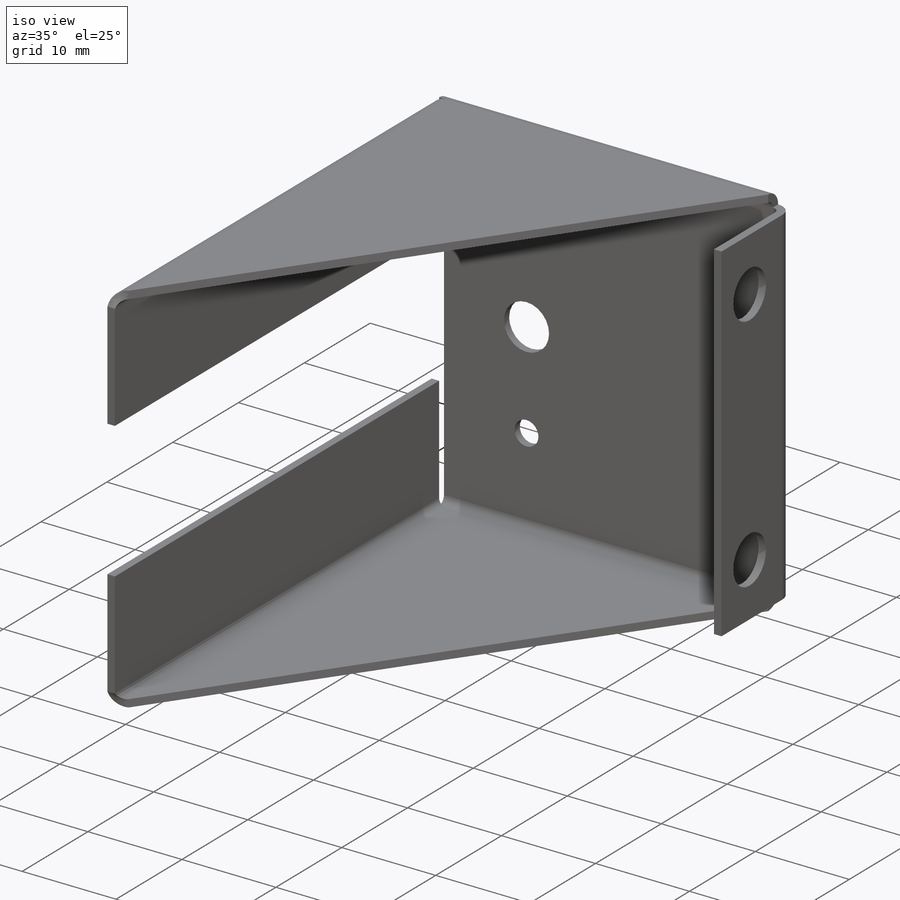
[diagram: iso view]
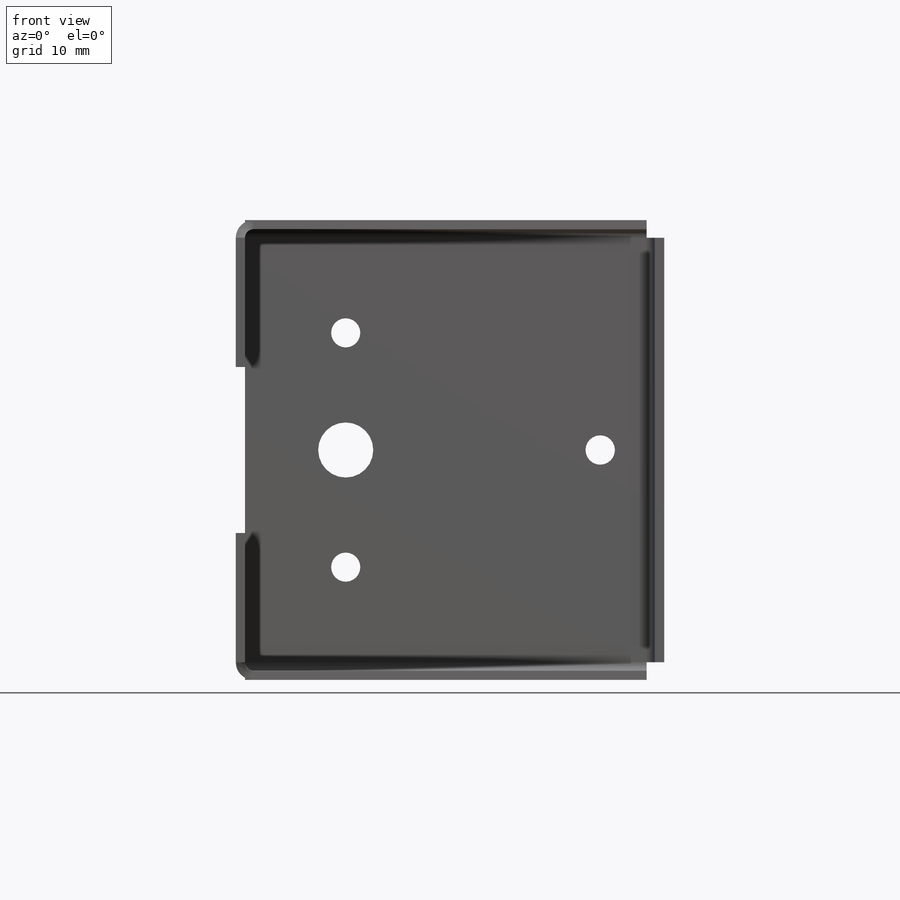
[diagram: front view]
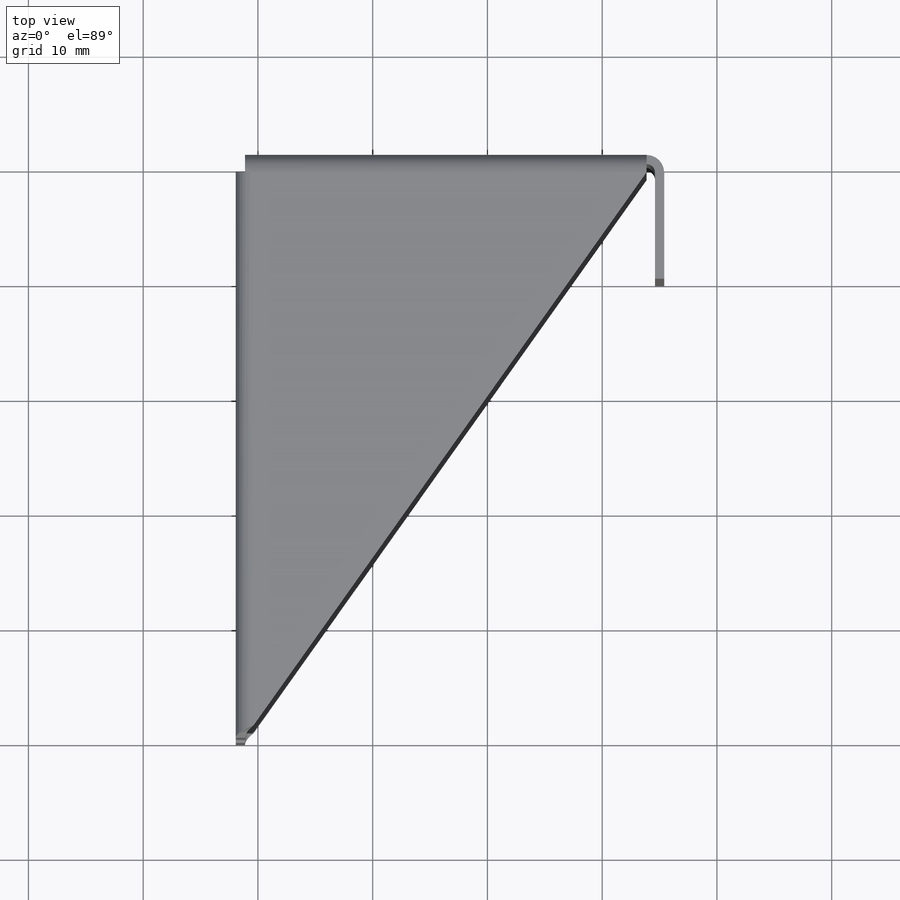
[diagram: top view]
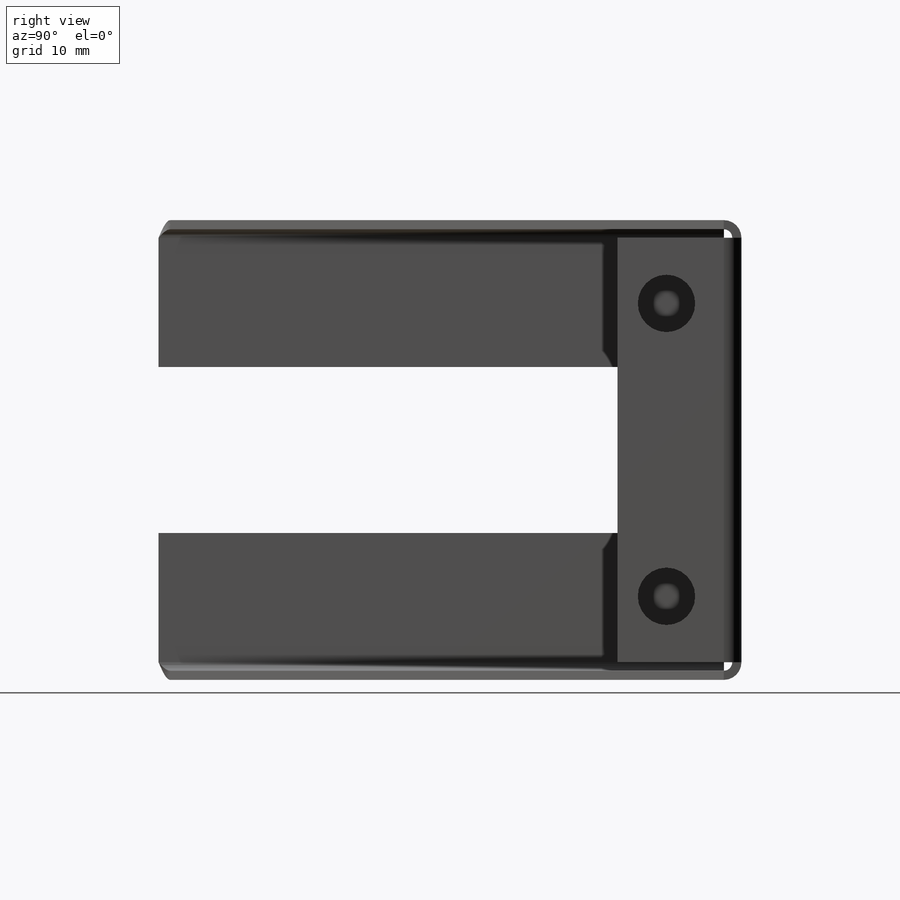
[diagram: right view]
SOLIDWORKS PART (.sldprt)
format: sldprt  version: not decoded by parser v0  size: 345,600 bytes
history: native  units: mm
features: sketch x16, cut_extrude x7, sheet_metal_op x6, material x1 + 5 further entries (+11 scaffold rows collapsed; 1 parser-record rows omitted)
feature tree (47):
  scaffold x11  (default folders/planes/origin — collapsed)
  material  "Material <not specified>"
  sketch  "Sketch2"  dims[D1=35.0mm D2=37.0mm]
  sheet_metal_op  "Sheet-Metal1"
  sheet_metal_op  "Base-Flange1"
  sketch  "Sketch7"  dims[c1.D1=0.7366mm c1.D4=90.0deg c1.D5=1.0 c1.D8=0.6mm c1.D9=0.6mm c2.D1=0.7366mm c2.D2=500.0mm c2.D3=0.0mm c2.D6=10.0mm c2.D7=50.0mm c2.Edge-Flange3=0.0]
  sketch  "Sketch13"
  sheet_metal_op  "EdgeBend3"
  sketch  "Sketch15"
  cut_extrude  "Cut-Extrude3"  Depth=0 Edge-Flange4=0
  sketch  "Sketch18"
  sheet_metal_op  "EdgeBend4"  Edge-Flange5=0
  sketch  "Sketch21"
  sheet_metal_op  "EdgeBend5"
  sketch  "Sketch23"  dims[D1=~9.42765mm]
  sketch  "Sketch26"  dims[D2=~2.008534mm D1=13.46mm]
  cut_extrude  "Cut-Extrude7"  Depth=10mm
  sketch  "Sketch27"  dims[c1.D4=~2.329724mm c1.D1=10.21mm c1.D2=8.72mm c1.D3=~8.292647mm c2.D3=~44.55675deg c2.D4=10.21mm]
  cut_extrude  "Cut-Extrude8"  Depth=10mm
  sketch  "Sketch28"  dims[c1.D2=~2.266512mm c1.D1=10.21mm c2.D2=8.72mm]
  cut_extrude  "Cut-Extrude10"  Depth=10mm
  sketch  "Sketch29"  dims[D2=~3.413375mm D1=8.72mm]
  cut_extrude  "Cut-Extrude11"  Depth=10mm Edge-Flange6=0
  sketch  "Sketch32"
  sheet_metal_op  "EdgeBend6"
  sketch  "Sketch33"  dims[D3=1.5mm D1=5.0mm D2=5.0mm]
  cut_extrude  "Cut-Extrude12"  Depth=10mm
  sketch  "Sketch34"  dims[D3=~3.734426mm D1=5.0mm D2=5.0mm]
  cut_extrude  "Cut-Extrude13"  Depth=10mm
  "Flat-Pattern1"
  sketch  "Bend-Lines1"
  sketch  "Bounding-Box1"
  "Flatten-<EdgeBend3>1"
  "Flatten-<EdgeBend4>1"
  "Flatten-<EdgeBend5>1"
  "Flatten-<EdgeBend6>1"
  parser-record x1  (decoder bookkeeping rows leaked as tree rows — omitted from the tree; the rows remain in map.json)
decode coverage: 17 of 29 modeling features carry decoded parameters; 5 rows unclassified (native names shown)
note: ~ marks probable driven/reference dimensions
note: suppression state not decoded; provenance and decode notes live in map.json
